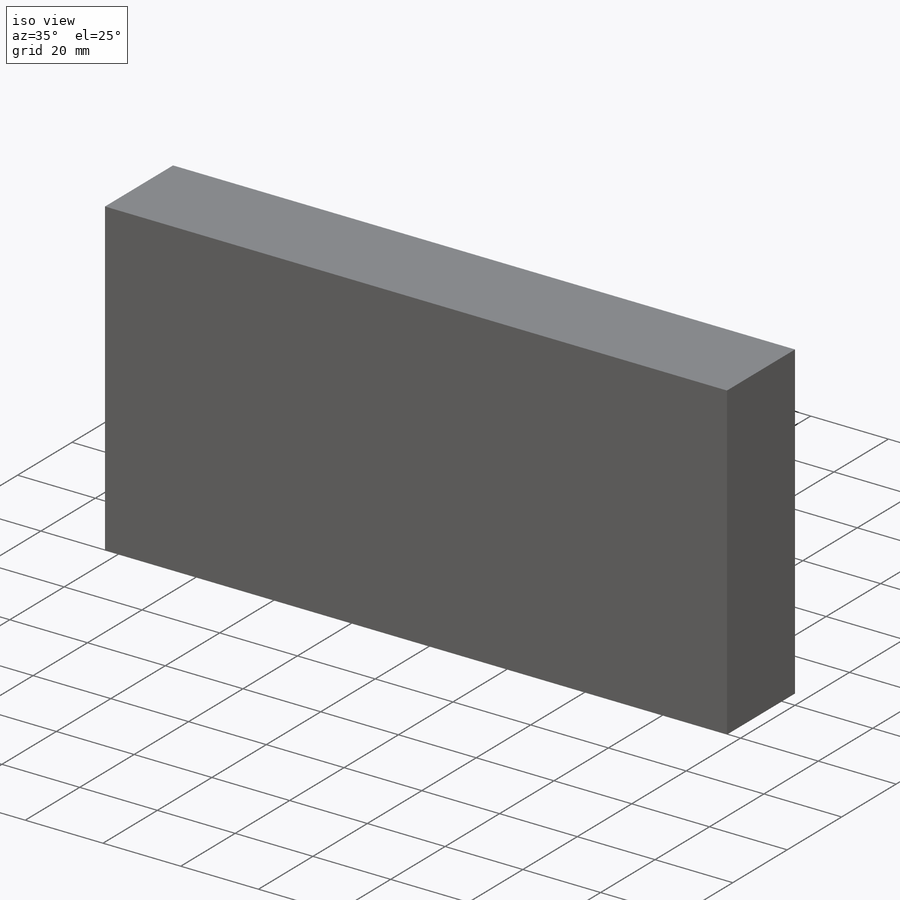
[diagram: iso view]
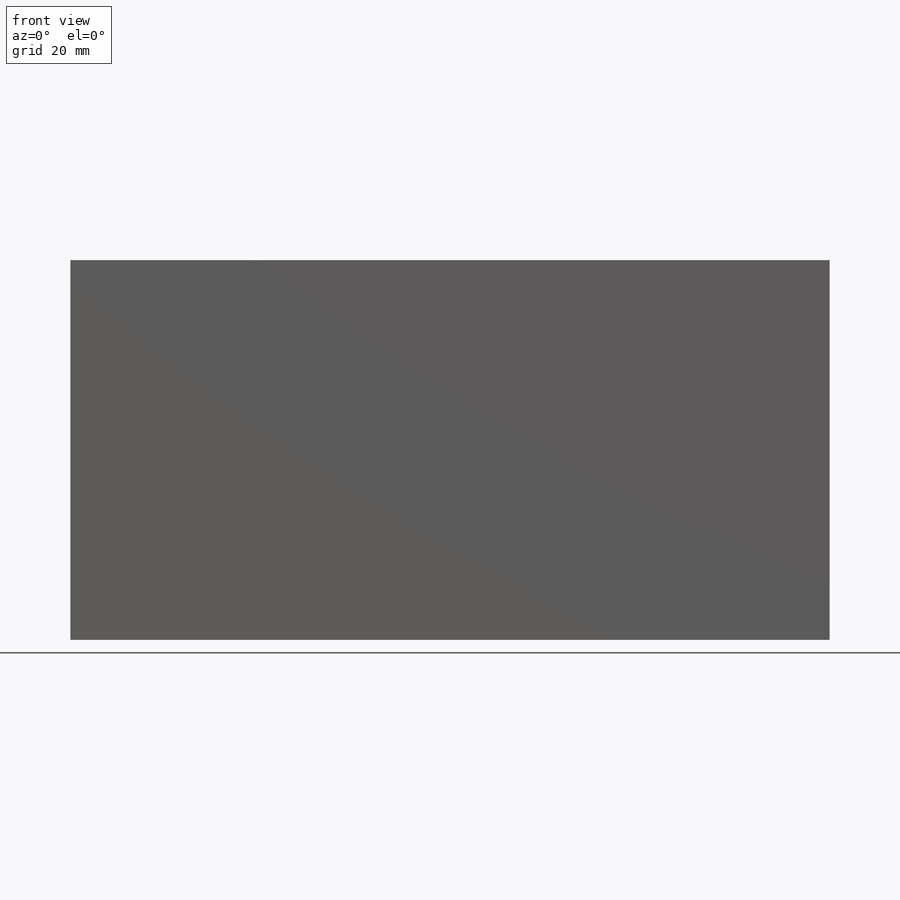
[diagram: front view]
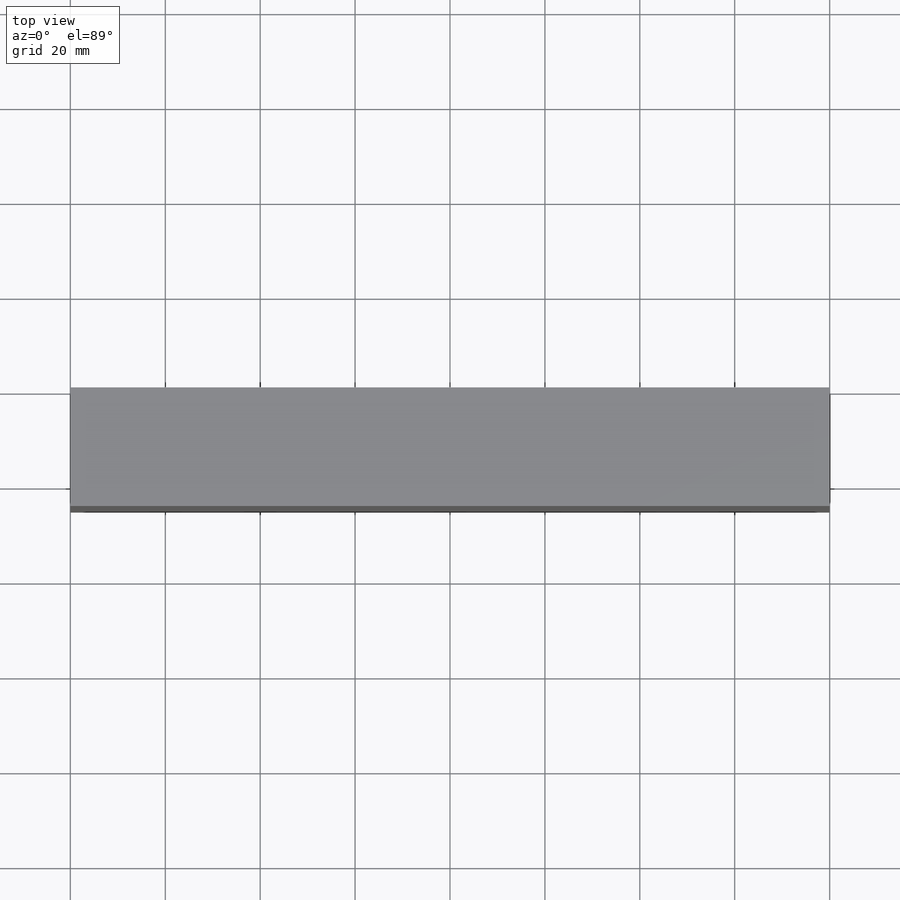
[diagram: top view]
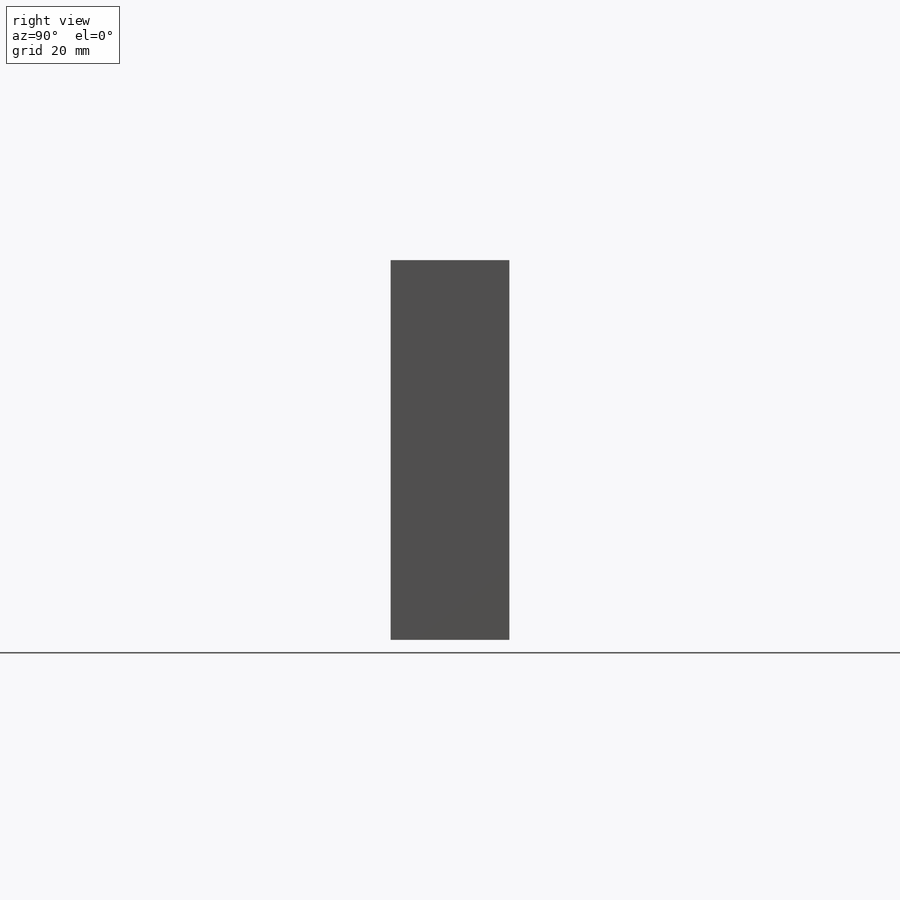
[diagram: right view]
SOLIDWORKS PART (.sldprt)
format: sldprt  version: not decoded by parser v0  size: 419,328 bytes
history: native  units: mm
features: sketch x8, fillet x6, extrude x5, plane x3, cut_extrude x3, material x1, hole x1, boolean_combine x1 (+8 scaffold rows collapsed)
feature tree (36):
  scaffold x8  (default folders/planes/origin — collapsed)
  material  "Matériau <non spécifié>"
  plane  "Plan de face"
  plane  "Plan de dessus"
  plane  "Plan de droite"
  sketch  "Esquisse1"  dims[c1.D1=20.0mm c1.D2=10.0mm c1.D3=70.0mm c1.D4=60.0mm c2.D3=16.0mm c2.D4=15.0mm c3.D3=35.0mm c3.D5=80.0mm]
  extrude  "Boss.-Extru.1"  Depth=4mm
  sketch  "Esquisse3"
  extrude  "Boss.-Extru.3"  Depth=4mm
  sketch  "Esquisse4"  dims[c1.D1=20.0mm c1.D2=~13.862962mm c2.D1=3.0mm c2.D2=3.0mm c2.D3=3.0mm]
  cut_extrude  "Enlèv. mat.-Extru.1"  Depth=1mm
  extrude  "Dépouille3"  [1 undecoded]
  extrude  "Dépouille4"  [1 undecoded]
  fillet  "Congé4"  Radius=10mm
  fillet  "Congé6"  Radius=1mm
  fillet  "Congé7"  Radius=1mm
  fillet  "Congé8"  Radius=1mm
  fillet  "Congé9"  Radius=1mm
  fillet  "Congé10"  Radius=1mm
  hole  "Diamètre du perçage Ø5.0 (5)1"  Diameter=5mm Depth=3mm
  sketch  "Esquisse6"
  sketch  "Esquisse5"  dims[hole-wizard template sketch: 47 standard entries collapsed; hole parameters kept: c15.Profondeur du perçage=3.0mm c15.D3=~14.816244mm c15.Angle de pointe=118.0deg]
  sketch  "Esquisse7"  dims[D1=110.0mm D2=240.0mm D3=55.0mm D4=70.0mm]
  extrude  "Boss.-Extru.4"  Depth=25mm
  boolean_combine  "Combiner1"
  sketch  "Esquisse8"
  cut_extrude  "Enlèv. mat.-Extru.3"  Depth=6mm
  sketch  "Esquisse9"
  cut_extrude  "Enlèv. mat.-Extru.4"  Depth=6mm
decode coverage: 17 of 24 modeling features carry decoded parameters
note: ~ marks probable driven/reference dimensions
note: 2 parameter values undecoded
note: suppression state not decoded; provenance and decode notes live in map.json
